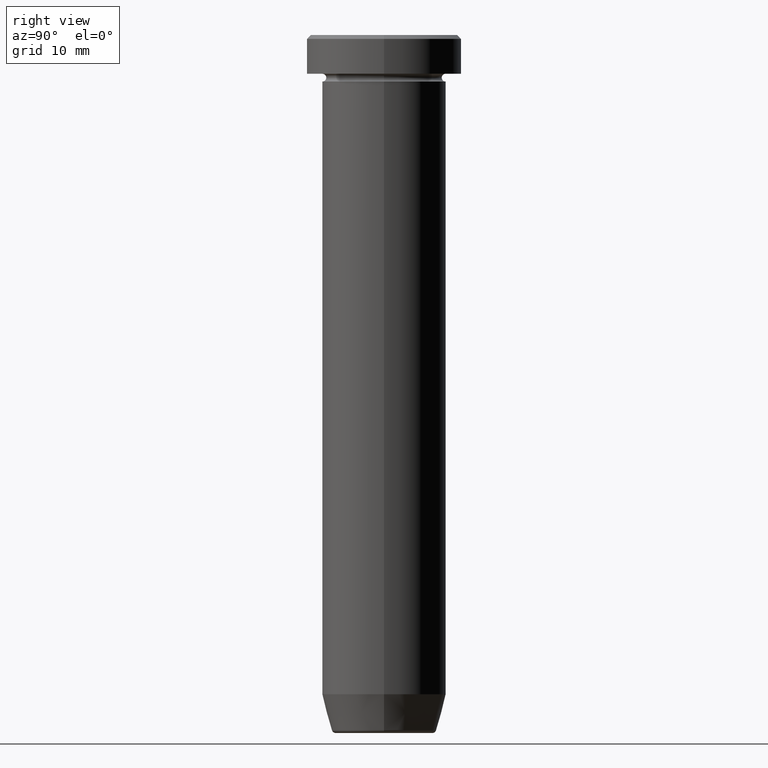
[diagram: clean part render]
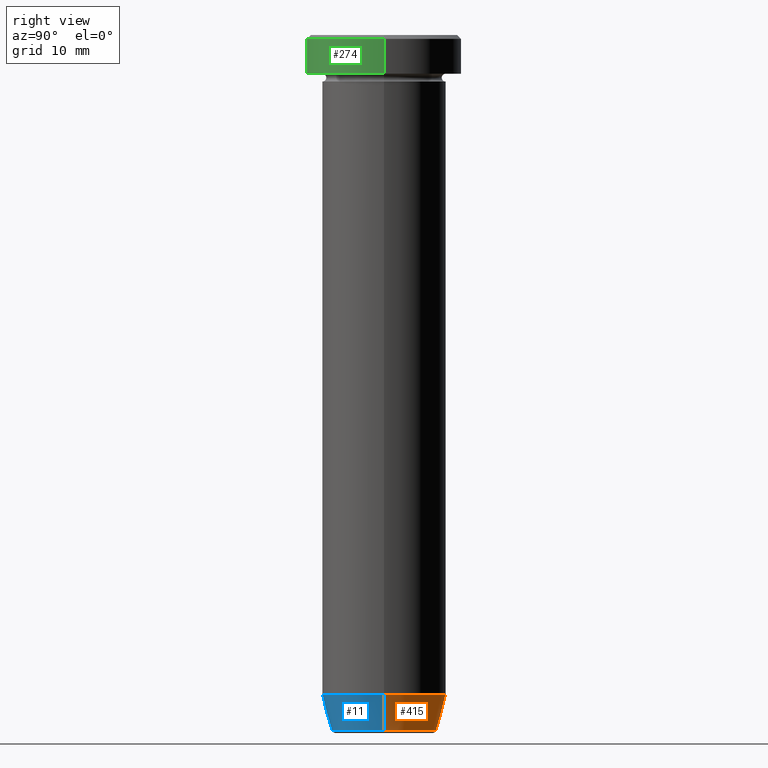
[diagram: same view with three faces highlighted in distinct colors, each labeled with its STEP entity id]
A machine part, right view with three faces highlighted in distinct colors.
Their STEP definitions:

[orange] entity #415 — the highlighted conical surface has half-angle 15 deg.
#3 = CIRCLE ( 'NONE', #562, 8.000000000000000000 ) ;
#12 = LINE ( 'NONE', #467, #375 ) ;
#65 = VECTOR ( 'NONE', #233, 1000.000000000000114 ) ;
#70 = DIRECTION ( 'NONE',  ( 1.000000000000000000, 0.000000000000000000, 0.000000000000000000 ) ) ;
#75 = AXIS2_PLACEMENT_3D ( 'NONE', #222, #220, #453 ) ;
#107 = FACE_OUTER_BOUND ( 'NONE', #417, .T. ) ;
#116 = CARTESIAN_POINT ( 'NONE',  ( 0.000000000000000000, 0.000000000000000000, -90.00000000000000000 ) ) ;
#139 = CARTESIAN_POINT ( 'NONE',  ( 6.759553456999437770, 0.000000000000000000, -89.62940952255125637 ) ) ;
#143 = CARTESIAN_POINT ( 'NONE',  ( -8.000000000000000000, 9.797174393178825657E-16, -84.99999999999998579 ) ) ;
#144 = VERTEX_POINT ( 'NONE', #196 ) ;
#148 = AXIS2_PLACEMENT_3D ( 'NONE', #116, #199, #70 ) ;
#152 = VERTEX_POINT ( 'NONE', #139 ) ;
#155 = CARTESIAN_POINT ( 'NONE',  ( 0.000000000000000000, 0.000000000000000000, -84.99999999999998579 ) ) ;
#169 = VERTEX_POINT ( 'NONE', #143 ) ;
#179 = EDGE_CURVE ( 'NONE', #152, #144, #506, .T. ) ;
#185 = DIRECTION ( 'NONE',  ( -0.2588190451025211836, 3.169619151431770488E-17, 0.9659258262890680902 ) ) ;
#196 = CARTESIAN_POINT ( 'NONE',  ( 8.000000000000000000, 0.000000000000000000, -84.99999999999998579 ) ) ;
#199 = DIRECTION ( 'NONE',  ( -0.000000000000000000, -0.000000000000000000, 1.000000000000000000 ) ) ;
#220 = DIRECTION ( 'NONE',  ( -0.000000000000000000, -0.000000000000000000, 1.000000000000000000 ) ) ;
#222 = CARTESIAN_POINT ( 'NONE',  ( 0.000000000000000000, 0.000000000000000000, -89.62940952255125637 ) ) ;
#233 = DIRECTION ( 'NONE',  ( 0.2588190451025211836, 0.000000000000000000, 0.9659258262890680902 ) ) ;
#246 = DIRECTION ( 'NONE',  ( -0.000000000000000000, -0.000000000000000000, 1.000000000000000000 ) ) ;
#271 = VERTEX_POINT ( 'NONE', #519 ) ;
#279 = EDGE_CURVE ( 'NONE', #271, #169, #12, .T. ) ;
#359 = EDGE_CURVE ( 'NONE', #144, #169, #3, .T. ) ;
#375 = VECTOR ( 'NONE', #185, 1000.000000000000114 ) ;
#408 = ORIENTED_EDGE ( 'NONE', *, *, #359, .F. ) ;
#412 = CONICAL_SURFACE ( 'NONE', #148, 6.660254037844382857, 0.2617993877991499074 ) ;
#415 = ADVANCED_FACE ( 'NONE', ( #107 ), #412, .T. ) ;
#417 = EDGE_LOOP ( 'NONE', ( #561, #432, #408, #577 ) ) ;
#432 = ORIENTED_EDGE ( 'NONE', *, *, #279, .T. ) ;
#453 = DIRECTION ( 'NONE',  ( -1.000000000000000000, 0.000000000000000000, 0.000000000000000000 ) ) ;
#467 = CARTESIAN_POINT ( 'NONE',  ( -6.660254037844382857, 8.156458788954358790E-16, -90.00000000000000000 ) ) ;
#469 = EDGE_CURVE ( 'NONE', #152, #271, #546, .T. ) ;
#475 = CARTESIAN_POINT ( 'NONE',  ( 6.660254037844382857, 0.000000000000000000, -90.00000000000000000 ) ) ;
#482 = DIRECTION ( 'NONE',  ( 1.000000000000000000, 0.000000000000000000, 0.000000000000000000 ) ) ;
#506 = LINE ( 'NONE', #475, #65 ) ;
#519 = CARTESIAN_POINT ( 'NONE',  ( -6.759553456999437770, 9.037619948979308185E-16, -89.62940952255125637 ) ) ;
#546 = CIRCLE ( 'NONE', #75, 6.759553456999436882 ) ;
#561 = ORIENTED_EDGE ( 'NONE', *, *, #469, .T. ) ;
#562 = AXIS2_PLACEMENT_3D ( 'NONE', #155, #246, #482 ) ;
#577 = ORIENTED_EDGE ( 'NONE', *, *, #179, .F. ) ;

[blue] entity #11 — the highlighted conical surface has half-angle 15 deg.
#11 = ADVANCED_FACE ( 'NONE', ( #86 ), #393, .T. ) ;
#12 = LINE ( 'NONE', #467, #375 ) ;
#31 = EDGE_CURVE ( 'NONE', #271, #152, #267, .T. ) ;
#44 = AXIS2_PLACEMENT_3D ( 'NONE', #437, #527, #68 ) ;
#56 = ORIENTED_EDGE ( 'NONE', *, *, #31, .T. ) ;
#60 = EDGE_LOOP ( 'NONE', ( #514, #56, #520, #488 ) ) ;
#65 = VECTOR ( 'NONE', #233, 1000.000000000000114 ) ;
#68 = DIRECTION ( 'NONE',  ( 1.000000000000000000, 0.000000000000000000, 0.000000000000000000 ) ) ;
#86 = FACE_OUTER_BOUND ( 'NONE', #60, .T. ) ;
#139 = CARTESIAN_POINT ( 'NONE',  ( 6.759553456999437770, 0.000000000000000000, -89.62940952255125637 ) ) ;
#143 = CARTESIAN_POINT ( 'NONE',  ( -8.000000000000000000, 9.797174393178825657E-16, -84.99999999999998579 ) ) ;
#144 = VERTEX_POINT ( 'NONE', #196 ) ;
#152 = VERTEX_POINT ( 'NONE', #139 ) ;
#169 = VERTEX_POINT ( 'NONE', #143 ) ;
#179 = EDGE_CURVE ( 'NONE', #152, #144, #506, .T. ) ;
#185 = DIRECTION ( 'NONE',  ( -0.2588190451025211836, 3.169619151431770488E-17, 0.9659258262890680902 ) ) ;
#196 = CARTESIAN_POINT ( 'NONE',  ( 8.000000000000000000, 0.000000000000000000, -84.99999999999998579 ) ) ;
#213 = CARTESIAN_POINT ( 'NONE',  ( 0.000000000000000000, 0.000000000000000000, -89.62940952255125637 ) ) ;
#233 = DIRECTION ( 'NONE',  ( 0.2588190451025211836, 0.000000000000000000, 0.9659258262890680902 ) ) ;
#267 = CIRCLE ( 'NONE', #481, 6.759553456999436882 ) ;
#271 = VERTEX_POINT ( 'NONE', #519 ) ;
#279 = EDGE_CURVE ( 'NONE', #271, #169, #12, .T. ) ;
#307 = EDGE_CURVE ( 'NONE', #169, #144, #594, .T. ) ;
#366 = CARTESIAN_POINT ( 'NONE',  ( 0.000000000000000000, 0.000000000000000000, -90.00000000000000000 ) ) ;
#375 = VECTOR ( 'NONE', #185, 1000.000000000000114 ) ;
#393 = CONICAL_SURFACE ( 'NONE', #535, 6.660254037844382857, 0.2617993877991499074 ) ;
#413 = DIRECTION ( 'NONE',  ( -0.000000000000000000, -0.000000000000000000, 1.000000000000000000 ) ) ;
#437 = CARTESIAN_POINT ( 'NONE',  ( 0.000000000000000000, 0.000000000000000000, -84.99999999999998579 ) ) ;
#467 = CARTESIAN_POINT ( 'NONE',  ( -6.660254037844382857, 8.156458788954358790E-16, -90.00000000000000000 ) ) ;
#475 = CARTESIAN_POINT ( 'NONE',  ( 6.660254037844382857, 0.000000000000000000, -90.00000000000000000 ) ) ;
#481 = AXIS2_PLACEMENT_3D ( 'NONE', #213, #413, #582 ) ;
#488 = ORIENTED_EDGE ( 'NONE', *, *, #307, .F. ) ;
#506 = LINE ( 'NONE', #475, #65 ) ;
#514 = ORIENTED_EDGE ( 'NONE', *, *, #279, .F. ) ;
#519 = CARTESIAN_POINT ( 'NONE',  ( -6.759553456999437770, 9.037619948979308185E-16, -89.62940952255125637 ) ) ;
#520 = ORIENTED_EDGE ( 'NONE', *, *, #179, .T. ) ;
#527 = DIRECTION ( 'NONE',  ( -0.000000000000000000, -0.000000000000000000, 1.000000000000000000 ) ) ;
#535 = AXIS2_PLACEMENT_3D ( 'NONE', #366, #550, #540 ) ;
#540 = DIRECTION ( 'NONE',  ( 1.000000000000000000, 0.000000000000000000, 0.000000000000000000 ) ) ;
#550 = DIRECTION ( 'NONE',  ( -0.000000000000000000, -0.000000000000000000, 1.000000000000000000 ) ) ;
#582 = DIRECTION ( 'NONE',  ( -1.000000000000000000, 0.000000000000000000, 0.000000000000000000 ) ) ;
#594 = CIRCLE ( 'NONE', #44, 8.000000000000000000 ) ;

[green] entity #274 — the highlighted cylindrical surface (partial cylindrical patch) has radius 10 mm, axis along (-0, -0, 1).
#1 = DIRECTION ( 'NONE',  ( 1.000000000000000000, 0.000000000000000000, 0.000000000000000000 ) ) ;
#28 = ORIENTED_EDGE ( 'NONE', *, *, #245, .F. ) ;
#47 = FACE_OUTER_BOUND ( 'NONE', #156, .T. ) ;
#66 = EDGE_CURVE ( 'NONE', #140, #424, #450, .T. ) ;
#69 = VERTEX_POINT ( 'NONE', #315 ) ;
#78 = ORIENTED_EDGE ( 'NONE', *, *, #66, .T. ) ;
#93 = DIRECTION ( 'NONE',  ( -0.000000000000000000, -0.000000000000000000, 1.000000000000000000 ) ) ;
#96 = DIRECTION ( 'NONE',  ( -0.000000000000000000, -0.000000000000000000, 1.000000000000000000 ) ) ;
#126 = DIRECTION ( 'NONE',  ( -0.000000000000000000, -0.000000000000000000, 1.000000000000000000 ) ) ;
#130 = VERTEX_POINT ( 'NONE', #596 ) ;
#133 = CARTESIAN_POINT ( 'NONE',  ( -10.00000000000000000, 1.224646799147353256E-15, -5.000000000000000000 ) ) ;
#140 = VERTEX_POINT ( 'NONE', #133 ) ;
#156 = EDGE_LOOP ( 'NONE', ( #28, #78, #522, #247 ) ) ;
#168 = VECTOR ( 'NONE', #126, 1000.000000000000000 ) ;
#174 = DIRECTION ( 'NONE',  ( -0.000000000000000000, -0.000000000000000000, 1.000000000000000000 ) ) ;
#197 = VECTOR ( 'NONE', #93, 1000.000000000000000 ) ;
#203 = CARTESIAN_POINT ( 'NONE',  ( 10.00000000000000000, 0.000000000000000000, -5.000000000000000000 ) ) ;
#211 = CARTESIAN_POINT ( 'NONE',  ( 0.000000000000000000, 0.000000000000000000, -0.5000000000000056621 ) ) ;
#214 = AXIS2_PLACEMENT_3D ( 'NONE', #219, #174, #276 ) ;
#219 = CARTESIAN_POINT ( 'NONE',  ( 0.000000000000000000, 0.000000000000000000, -5.000000000000000000 ) ) ;
#226 = AXIS2_PLACEMENT_3D ( 'NONE', #428, #96, #1 ) ;
#242 = CARTESIAN_POINT ( 'NONE',  ( -10.00000000000000000, 1.224646799147353256E-15, 0.000000000000000000 ) ) ;
#245 = EDGE_CURVE ( 'NONE', #140, #130, #381, .T. ) ;
#247 = ORIENTED_EDGE ( 'NONE', *, *, #504, .T. ) ;
#274 = ADVANCED_FACE ( 'NONE', ( #47 ), #323, .T. ) ;
#276 = DIRECTION ( 'NONE',  ( 1.000000000000000000, 0.000000000000000000, 0.000000000000000000 ) ) ;
#305 = DIRECTION ( 'NONE',  ( 1.000000000000000000, 0.000000000000000000, 0.000000000000000000 ) ) ;
#315 = CARTESIAN_POINT ( 'NONE',  ( 10.00000000000000000, 0.000000000000000000, -0.5000000000000056621 ) ) ;
#323 = CYLINDRICAL_SURFACE ( 'NONE', #226, 10.00000000000000000 ) ;
#381 = LINE ( 'NONE', #242, #197 ) ;
#404 = LINE ( 'NONE', #541, #168 ) ;
#424 = VERTEX_POINT ( 'NONE', #203 ) ;
#428 = CARTESIAN_POINT ( 'NONE',  ( 0.000000000000000000, 0.000000000000000000, 0.000000000000000000 ) ) ;
#445 = DIRECTION ( 'NONE',  ( 0.000000000000000000, 0.000000000000000000, -1.000000000000000000 ) ) ;
#450 = CIRCLE ( 'NONE', #214, 10.00000000000000000 ) ;
#452 = AXIS2_PLACEMENT_3D ( 'NONE', #211, #445, #305 ) ;
#504 = EDGE_CURVE ( 'NONE', #69, #130, #547, .T. ) ;
#522 = ORIENTED_EDGE ( 'NONE', *, *, #590, .T. ) ;
#541 = CARTESIAN_POINT ( 'NONE',  ( 10.00000000000000000, 0.000000000000000000, 0.000000000000000000 ) ) ;
#547 = CIRCLE ( 'NONE', #452, 10.00000000000000000 ) ;
#590 = EDGE_CURVE ( 'NONE', #424, #69, #404, .T. ) ;
#596 = CARTESIAN_POINT ( 'NONE',  ( -10.00000000000000000, 1.224646799147353256E-15, -0.5000000000000056621 ) ) ;